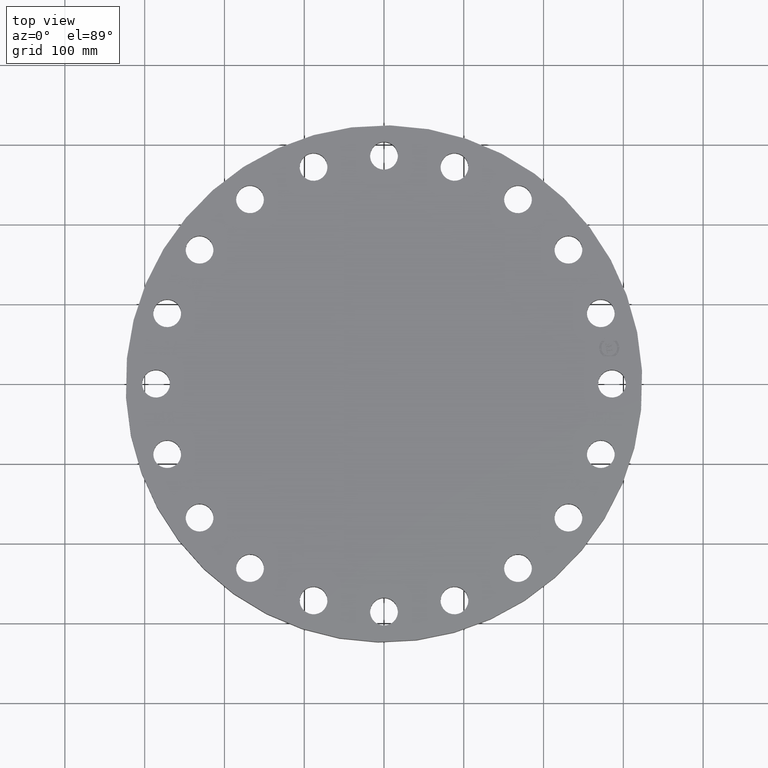
[diagram: clean part render]
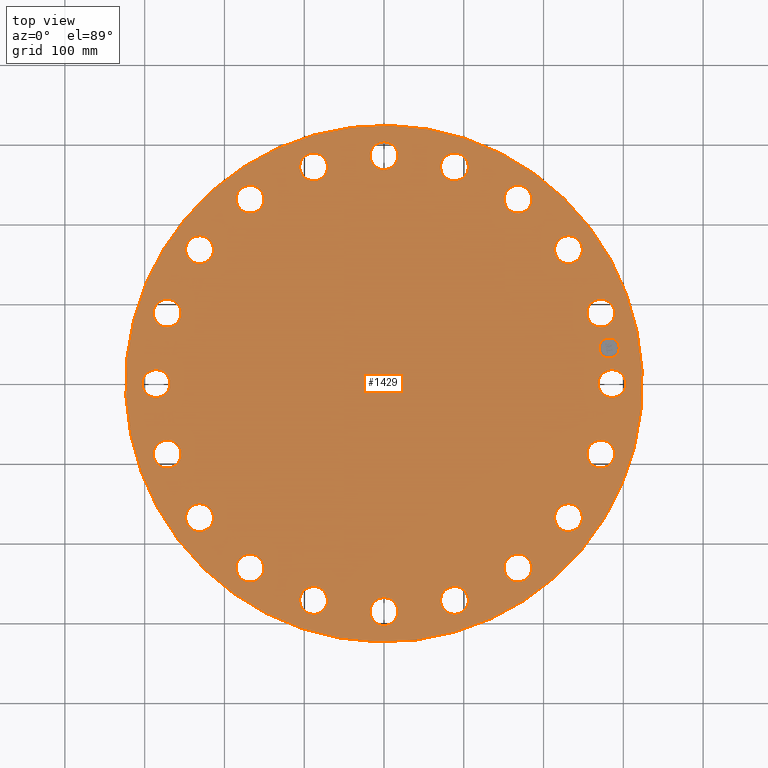
[diagram: same view with one face highlighted and labeled with its STEP entity id]
A machine part, top view. The second image highlights one B-rep face of the part: STEP entity #1429.
In plain terms, the highlighted planar face has unit normal (0, 0, 1).
Its self-contained STEP definition (entity closure, byte-faithful):
#65=AXIS2_PLACEMENT_3D('Circle Axis2P3D',#63,#64,$) ;
#82=AXIS2_PLACEMENT_3D('Circle Axis2P3D',#80,#81,$) ;
#108=AXIS2_PLACEMENT_3D('Circle Axis2P3D',#106,#107,$) ;
#134=AXIS2_PLACEMENT_3D('Circle Axis2P3D',#132,#133,$) ;
#526=AXIS2_PLACEMENT_3D('Circle Axis2P3D',#524,#525,$) ;
#538=AXIS2_PLACEMENT_3D('Circle Axis2P3D',#536,#537,$) ;
#569=AXIS2_PLACEMENT_3D('Circle Axis2P3D',#567,#568,$) ;
#581=AXIS2_PLACEMENT_3D('Circle Axis2P3D',#579,#580,$) ;
#612=AXIS2_PLACEMENT_3D('Circle Axis2P3D',#610,#611,$) ;
#624=AXIS2_PLACEMENT_3D('Circle Axis2P3D',#622,#623,$) ;
#655=AXIS2_PLACEMENT_3D('Circle Axis2P3D',#653,#654,$) ;
#667=AXIS2_PLACEMENT_3D('Circle Axis2P3D',#665,#666,$) ;
#698=AXIS2_PLACEMENT_3D('Circle Axis2P3D',#696,#697,$) ;
#710=AXIS2_PLACEMENT_3D('Circle Axis2P3D',#708,#709,$) ;
#741=AXIS2_PLACEMENT_3D('Circle Axis2P3D',#739,#740,$) ;
#753=AXIS2_PLACEMENT_3D('Circle Axis2P3D',#751,#752,$) ;
#784=AXIS2_PLACEMENT_3D('Circle Axis2P3D',#782,#783,$) ;
#796=AXIS2_PLACEMENT_3D('Circle Axis2P3D',#794,#795,$) ;
#827=AXIS2_PLACEMENT_3D('Circle Axis2P3D',#825,#826,$) ;
#839=AXIS2_PLACEMENT_3D('Circle Axis2P3D',#837,#838,$) ;
#870=AXIS2_PLACEMENT_3D('Circle Axis2P3D',#868,#869,$) ;
#882=AXIS2_PLACEMENT_3D('Circle Axis2P3D',#880,#881,$) ;
#913=AXIS2_PLACEMENT_3D('Circle Axis2P3D',#911,#912,$) ;
#925=AXIS2_PLACEMENT_3D('Circle Axis2P3D',#923,#924,$) ;
#956=AXIS2_PLACEMENT_3D('Circle Axis2P3D',#954,#955,$) ;
#968=AXIS2_PLACEMENT_3D('Circle Axis2P3D',#966,#967,$) ;
#999=AXIS2_PLACEMENT_3D('Circle Axis2P3D',#997,#998,$) ;
#1011=AXIS2_PLACEMENT_3D('Circle Axis2P3D',#1009,#1010,$) ;
#1042=AXIS2_PLACEMENT_3D('Circle Axis2P3D',#1040,#1041,$) ;
#1054=AXIS2_PLACEMENT_3D('Circle Axis2P3D',#1052,#1053,$) ;
#1085=AXIS2_PLACEMENT_3D('Circle Axis2P3D',#1083,#1084,$) ;
#1097=AXIS2_PLACEMENT_3D('Circle Axis2P3D',#1095,#1096,$) ;
#1128=AXIS2_PLACEMENT_3D('Circle Axis2P3D',#1126,#1127,$) ;
#1140=AXIS2_PLACEMENT_3D('Circle Axis2P3D',#1138,#1139,$) ;
#1171=AXIS2_PLACEMENT_3D('Circle Axis2P3D',#1169,#1170,$) ;
#1183=AXIS2_PLACEMENT_3D('Circle Axis2P3D',#1181,#1182,$) ;
#1214=AXIS2_PLACEMENT_3D('Circle Axis2P3D',#1212,#1213,$) ;
#1226=AXIS2_PLACEMENT_3D('Circle Axis2P3D',#1224,#1225,$) ;
#1257=AXIS2_PLACEMENT_3D('Circle Axis2P3D',#1255,#1256,$) ;
#1269=AXIS2_PLACEMENT_3D('Circle Axis2P3D',#1267,#1268,$) ;
#1300=AXIS2_PLACEMENT_3D('Circle Axis2P3D',#1298,#1299,$) ;
#1312=AXIS2_PLACEMENT_3D('Circle Axis2P3D',#1310,#1311,$) ;
#1325=AXIS2_PLACEMENT_3D('Plane Axis2P3D',#1322,#1323,#1324) ;
#1413=AXIS2_PLACEMENT_3D('Circle Axis2P3D',#1411,#1412,$) ;
#1422=AXIS2_PLACEMENT_3D('Circle Axis2P3D',#1420,#1421,$) ;
#46=CARTESIAN_POINT('Vertex',(10.6466619887,0.329605057792,2.14000000001)) ;
#60=CARTESIAN_POINT('Vertex',(11.8533380113,-0.329605057792,2.14000000001)) ;
#63=CARTESIAN_POINT('Axis2P3D Location',(11.25,0.,2.14000000001)) ;
#80=CARTESIAN_POINT('Axis2P3D Location',(11.25,0.,2.14000000001)) ;
#103=CARTESIAN_POINT('Vertex',(11.1891776641,6.11267561723,2.14000000001)) ;
#106=CARTESIAN_POINT('Axis2P3D Location',(0.,0.,2.14000000001)) ;
#110=CARTESIAN_POINT('Vertex',(-11.1891776641,-6.11267561723,2.14000000001)) ;
#132=CARTESIAN_POINT('Axis2P3D Location',(0.,0.,2.14000000001)) ;
#514=CARTESIAN_POINT('Vertex',(10.0237236969,3.6034725259,2.14000000001)) ;
#521=CARTESIAN_POINT('Vertex',(11.3750479198,3.34940984756,2.14000000001)) ;
#524=CARTESIAN_POINT('Axis2P3D Location',(10.6993858084,3.47644118673,2.14000000001)) ;
#536=CARTESIAN_POINT('Axis2P3D Location',(10.6993858084,3.47644118673,2.14000000001)) ;
#557=CARTESIAN_POINT('Vertex',(8.41959349021,6.52460699631,2.14000000001)) ;
#564=CARTESIAN_POINT('Vertex',(9.7832888833,6.70056118032,2.14000000001)) ;
#567=CARTESIAN_POINT('Axis2P3D Location',(9.10144118675,6.61258408832,2.14000000001)) ;
#579=CARTESIAN_POINT('Axis2P3D Location',(9.10144118675,6.61258408832,2.14000000001)) ;
#600=CARTESIAN_POINT('Vertex',(5.99129480994,8.80706747431,2.14000000001)) ;
#607=CARTESIAN_POINT('Vertex',(7.23387336669,9.3958148992,2.14000000001)) ;
#610=CARTESIAN_POINT('Axis2P3D Location',(6.61258408832,9.10144118675,2.14000000001)) ;
#622=CARTESIAN_POINT('Axis2P3D Location',(6.61258408832,9.10144118675,2.14000000001)) ;
#643=CARTESIAN_POINT('Vertex',(2.97652644987,10.2274308255,2.14000000001)) ;
#650=CARTESIAN_POINT('Vertex',(3.97635592359,11.1713407913,2.14000000001)) ;
#653=CARTESIAN_POINT('Axis2P3D Location',(3.47644118673,10.6993858084,2.14000000001)) ;
#665=CARTESIAN_POINT('Axis2P3D Location',(3.47644118673,10.6993858084,2.14000000001)) ;
#686=CARTESIAN_POINT('Vertex',(-0.329605057792,10.6466619887,2.14000000001)) ;
#693=CARTESIAN_POINT('Vertex',(0.329605057792,11.8533380113,2.14000000001)) ;
#696=CARTESIAN_POINT('Axis2P3D Location',(3.18686562994E-015,11.25,2.14000000001)) ;
#708=CARTESIAN_POINT('Axis2P3D Location',(3.18686562994E-015,11.25,2.14000000001)) ;
#729=CARTESIAN_POINT('Vertex',(-3.6034725259,10.0237236969,2.14000000001)) ;
#736=CARTESIAN_POINT('Vertex',(-3.34940984756,11.3750479198,2.14000000001)) ;
#739=CARTESIAN_POINT('Axis2P3D Location',(-3.47644118673,10.6993858084,2.14000000001)) ;
#751=CARTESIAN_POINT('Axis2P3D Location',(-3.47644118673,10.6993858084,2.14000000001)) ;
#772=CARTESIAN_POINT('Vertex',(-6.52460699631,8.41959349021,2.14000000001)) ;
#779=CARTESIAN_POINT('Vertex',(-6.70056118032,9.7832888833,2.14000000001)) ;
#782=CARTESIAN_POINT('Axis2P3D Location',(-6.61258408832,9.10144118675,2.14000000001)) ;
#794=CARTESIAN_POINT('Axis2P3D Location',(-6.61258408832,9.10144118675,2.14000000001)) ;
#815=CARTESIAN_POINT('Vertex',(-8.80706747431,5.99129480994,2.14000000001)) ;
#822=CARTESIAN_POINT('Vertex',(-9.3958148992,7.23387336669,2.14000000001)) ;
#825=CARTESIAN_POINT('Axis2P3D Location',(-9.10144118675,6.61258408832,2.14000000001)) ;
#837=CARTESIAN_POINT('Axis2P3D Location',(-9.10144118675,6.61258408832,2.14000000001)) ;
#858=CARTESIAN_POINT('Vertex',(-10.2274308255,2.97652644987,2.14000000001)) ;
#865=CARTESIAN_POINT('Vertex',(-11.1713407913,3.97635592359,2.14000000001)) ;
#868=CARTESIAN_POINT('Axis2P3D Location',(-10.6993858084,3.47644118673,2.14000000001)) ;
#880=CARTESIAN_POINT('Axis2P3D Location',(-10.6993858084,3.47644118673,2.14000000001)) ;
#901=CARTESIAN_POINT('Vertex',(-10.6466619887,-0.329605057792,2.14000000001)) ;
#908=CARTESIAN_POINT('Vertex',(-11.8533380113,0.329605057792,2.14000000001)) ;
#911=CARTESIAN_POINT('Axis2P3D Location',(-11.25,6.37373125988E-015,2.14000000001)) ;
#923=CARTESIAN_POINT('Axis2P3D Location',(-11.25,6.37373125988E-015,2.14000000001)) ;
#944=CARTESIAN_POINT('Vertex',(-10.0237236969,-3.6034725259,2.14000000001)) ;
#951=CARTESIAN_POINT('Vertex',(-11.3750479198,-3.34940984756,2.14000000001)) ;
#954=CARTESIAN_POINT('Axis2P3D Location',(-10.6993858084,-3.47644118673,2.14000000001)) ;
#966=CARTESIAN_POINT('Axis2P3D Location',(-10.6993858084,-3.47644118673,2.14000000001)) ;
#987=CARTESIAN_POINT('Vertex',(-8.41959349021,-6.52460699631,2.14000000001)) ;
#994=CARTESIAN_POINT('Vertex',(-9.7832888833,-6.70056118032,2.14000000001)) ;
#997=CARTESIAN_POINT('Axis2P3D Location',(-9.10144118675,-6.61258408832,2.14000000001)) ;
#1009=CARTESIAN_POINT('Axis2P3D Location',(-9.10144118675,-6.61258408832,2.14000000001)) ;
#1030=CARTESIAN_POINT('Vertex',(-5.99129480994,-8.80706747431,2.14000000001)) ;
#1037=CARTESIAN_POINT('Vertex',(-7.23387336669,-9.3958148992,2.14000000001)) ;
#1040=CARTESIAN_POINT('Axis2P3D Location',(-6.61258408832,-9.10144118675,2.14000000001)) ;
#1052=CARTESIAN_POINT('Axis2P3D Location',(-6.61258408832,-9.10144118675,2.14000000001)) ;
#1073=CARTESIAN_POINT('Vertex',(-2.97652644987,-10.2274308255,2.14000000001)) ;
#1080=CARTESIAN_POINT('Vertex',(-3.97635592359,-11.1713407913,2.14000000001)) ;
#1083=CARTESIAN_POINT('Axis2P3D Location',(-3.47644118673,-10.6993858084,2.14000000001)) ;
#1095=CARTESIAN_POINT('Axis2P3D Location',(-3.47644118673,-10.6993858084,2.14000000001)) ;
#1116=CARTESIAN_POINT('Vertex',(0.329605057792,-10.6466619887,2.14000000001)) ;
#1123=CARTESIAN_POINT('Vertex',(-0.329605057792,-11.8533380113,2.14000000001)) ;
#1126=CARTESIAN_POINT('Axis2P3D Location',(-9.82066881883E-015,-11.25,2.14000000001)) ;
#1138=CARTESIAN_POINT('Axis2P3D Location',(-9.82066881883E-015,-11.25,2.14000000001)) ;
#1159=CARTESIAN_POINT('Vertex',(3.6034725259,-10.0237236969,2.14000000001)) ;
#1166=CARTESIAN_POINT('Vertex',(3.34940984756,-11.3750479198,2.14000000001)) ;
#1169=CARTESIAN_POINT('Axis2P3D Location',(3.47644118673,-10.6993858084,2.14000000001)) ;
#1181=CARTESIAN_POINT('Axis2P3D Location',(3.47644118673,-10.6993858084,2.14000000001)) ;
#1202=CARTESIAN_POINT('Vertex',(6.52460699631,-8.41959349021,2.14000000001)) ;
#1209=CARTESIAN_POINT('Vertex',(6.70056118032,-9.7832888833,2.14000000001)) ;
#1212=CARTESIAN_POINT('Axis2P3D Location',(6.61258408832,-9.10144118675,2.14000000001)) ;
#1224=CARTESIAN_POINT('Axis2P3D Location',(6.61258408832,-9.10144118675,2.14000000001)) ;
#1245=CARTESIAN_POINT('Vertex',(8.80706747431,-5.99129480994,2.14000000001)) ;
#1252=CARTESIAN_POINT('Vertex',(9.3958148992,-7.23387336669,2.14000000001)) ;
#1255=CARTESIAN_POINT('Axis2P3D Location',(9.10144118675,-6.61258408832,2.14000000001)) ;
#1267=CARTESIAN_POINT('Axis2P3D Location',(9.10144118675,-6.61258408832,2.14000000001)) ;
#1288=CARTESIAN_POINT('Vertex',(10.2274308255,-2.97652644987,2.14000000001)) ;
#1295=CARTESIAN_POINT('Vertex',(11.1713407913,-3.97635592359,2.14000000001)) ;
#1298=CARTESIAN_POINT('Axis2P3D Location',(10.6993858084,-3.47644118673,2.14000000001)) ;
#1310=CARTESIAN_POINT('Axis2P3D Location',(10.6993858084,-3.47644118673,2.14000000001)) ;
#1322=CARTESIAN_POINT('Axis2P3D Location',(12.7500000001,0.,2.14000000001)) ;
#1411=CARTESIAN_POINT('Axis2P3D Location',(11.1114938317,1.75988773171,2.14000000001)) ;
#1415=CARTESIAN_POINT('Vertex',(11.0332766,2.25373189707,2.14000000001)) ;
#1417=CARTESIAN_POINT('Vertex',(11.1897110635,1.26604356635,2.14000000001)) ;
#1420=CARTESIAN_POINT('Axis2P3D Location',(11.1114938317,1.75988773171,2.14000000001)) ;
#64=DIRECTION('Axis2P3D Direction',(0.,-0.,-0.0393700787402)) ;
#81=DIRECTION('Axis2P3D Direction',(0.,-0.,-0.0393700787402)) ;
#107=DIRECTION('Axis2P3D Direction',(0.,0.,0.0393700787402)) ;
#133=DIRECTION('Axis2P3D Direction',(0.,0.,0.0393700787402)) ;
#525=DIRECTION('Axis2P3D Direction',(0.,0.,-0.0393700787402)) ;
#537=DIRECTION('Axis2P3D Direction',(0.,0.,-0.0393700787402)) ;
#568=DIRECTION('Axis2P3D Direction',(0.,0.,-0.0393700787402)) ;
#580=DIRECTION('Axis2P3D Direction',(0.,0.,-0.0393700787402)) ;
#611=DIRECTION('Axis2P3D Direction',(0.,0.,-0.0393700787402)) ;
#623=DIRECTION('Axis2P3D Direction',(0.,0.,-0.0393700787402)) ;
#654=DIRECTION('Axis2P3D Direction',(0.,0.,-0.0393700787402)) ;
#666=DIRECTION('Axis2P3D Direction',(0.,0.,-0.0393700787402)) ;
#697=DIRECTION('Axis2P3D Direction',(0.,0.,-0.0393700787402)) ;
#709=DIRECTION('Axis2P3D Direction',(0.,0.,-0.0393700787402)) ;
#740=DIRECTION('Axis2P3D Direction',(0.,0.,-0.0393700787402)) ;
#752=DIRECTION('Axis2P3D Direction',(0.,0.,-0.0393700787402)) ;
#783=DIRECTION('Axis2P3D Direction',(0.,0.,-0.0393700787402)) ;
#795=DIRECTION('Axis2P3D Direction',(0.,0.,-0.0393700787402)) ;
#826=DIRECTION('Axis2P3D Direction',(0.,0.,-0.0393700787402)) ;
#838=DIRECTION('Axis2P3D Direction',(0.,0.,-0.0393700787402)) ;
#869=DIRECTION('Axis2P3D Direction',(0.,0.,-0.0393700787402)) ;
#881=DIRECTION('Axis2P3D Direction',(0.,0.,-0.0393700787402)) ;
#912=DIRECTION('Axis2P3D Direction',(0.,0.,-0.0393700787402)) ;
#924=DIRECTION('Axis2P3D Direction',(0.,0.,-0.0393700787402)) ;
#955=DIRECTION('Axis2P3D Direction',(-0.,0.,-0.0393700787402)) ;
#967=DIRECTION('Axis2P3D Direction',(-0.,0.,-0.0393700787402)) ;
#998=DIRECTION('Axis2P3D Direction',(-0.,0.,-0.0393700787402)) ;
#1010=DIRECTION('Axis2P3D Direction',(-0.,0.,-0.0393700787402)) ;
#1041=DIRECTION('Axis2P3D Direction',(-0.,0.,-0.0393700787402)) ;
#1053=DIRECTION('Axis2P3D Direction',(-0.,0.,-0.0393700787402)) ;
#1084=DIRECTION('Axis2P3D Direction',(-0.,0.,-0.0393700787402)) ;
#1096=DIRECTION('Axis2P3D Direction',(-0.,0.,-0.0393700787402)) ;
#1127=DIRECTION('Axis2P3D Direction',(-0.,0.,-0.0393700787402)) ;
#1139=DIRECTION('Axis2P3D Direction',(-0.,0.,-0.0393700787402)) ;
#1170=DIRECTION('Axis2P3D Direction',(0.,-0.,-0.0393700787402)) ;
#1182=DIRECTION('Axis2P3D Direction',(0.,-0.,-0.0393700787402)) ;
#1213=DIRECTION('Axis2P3D Direction',(0.,-0.,-0.0393700787402)) ;
#1225=DIRECTION('Axis2P3D Direction',(0.,-0.,-0.0393700787402)) ;
#1256=DIRECTION('Axis2P3D Direction',(0.,-0.,-0.0393700787402)) ;
#1268=DIRECTION('Axis2P3D Direction',(0.,-0.,-0.0393700787402)) ;
#1299=DIRECTION('Axis2P3D Direction',(0.,-0.,-0.0393700787402)) ;
#1311=DIRECTION('Axis2P3D Direction',(0.,-0.,-0.0393700787402)) ;
#1323=DIRECTION('Axis2P3D Direction',(0.,0.,0.0393700787402)) ;
#1324=DIRECTION('Axis2P3D XDirection',(0.0393700787402,0.,0.)) ;
#1412=DIRECTION('Axis2P3D Direction',(0.,0.,0.0393700787402)) ;
#1421=DIRECTION('Axis2P3D Direction',(0.,0.,0.0393700787402)) ;
#1328=ORIENTED_EDGE('',*,*,#112,.T.) ;
#1329=ORIENTED_EDGE('',*,*,#136,.T.) ;
#1332=ORIENTED_EDGE('',*,*,#84,.F.) ;
#1333=ORIENTED_EDGE('',*,*,#67,.F.) ;
#1336=ORIENTED_EDGE('',*,*,#528,.F.) ;
#1337=ORIENTED_EDGE('',*,*,#540,.F.) ;
#1340=ORIENTED_EDGE('',*,*,#571,.F.) ;
#1341=ORIENTED_EDGE('',*,*,#583,.F.) ;
#1344=ORIENTED_EDGE('',*,*,#614,.F.) ;
#1345=ORIENTED_EDGE('',*,*,#626,.F.) ;
#1348=ORIENTED_EDGE('',*,*,#657,.F.) ;
#1349=ORIENTED_EDGE('',*,*,#669,.F.) ;
#1352=ORIENTED_EDGE('',*,*,#700,.F.) ;
#1353=ORIENTED_EDGE('',*,*,#712,.F.) ;
#1356=ORIENTED_EDGE('',*,*,#743,.F.) ;
#1357=ORIENTED_EDGE('',*,*,#755,.F.) ;
#1360=ORIENTED_EDGE('',*,*,#786,.F.) ;
#1361=ORIENTED_EDGE('',*,*,#798,.F.) ;
#1364=ORIENTED_EDGE('',*,*,#829,.F.) ;
#1365=ORIENTED_EDGE('',*,*,#841,.F.) ;
#1368=ORIENTED_EDGE('',*,*,#872,.F.) ;
#1369=ORIENTED_EDGE('',*,*,#884,.F.) ;
#1372=ORIENTED_EDGE('',*,*,#915,.F.) ;
#1373=ORIENTED_EDGE('',*,*,#927,.F.) ;
#1376=ORIENTED_EDGE('',*,*,#958,.F.) ;
#1377=ORIENTED_EDGE('',*,*,#970,.F.) ;
#1380=ORIENTED_EDGE('',*,*,#1001,.F.) ;
#1381=ORIENTED_EDGE('',*,*,#1013,.F.) ;
#1384=ORIENTED_EDGE('',*,*,#1044,.F.) ;
#1385=ORIENTED_EDGE('',*,*,#1056,.F.) ;
#1388=ORIENTED_EDGE('',*,*,#1087,.F.) ;
#1389=ORIENTED_EDGE('',*,*,#1099,.F.) ;
#1392=ORIENTED_EDGE('',*,*,#1130,.F.) ;
#1393=ORIENTED_EDGE('',*,*,#1142,.F.) ;
#1396=ORIENTED_EDGE('',*,*,#1173,.F.) ;
#1397=ORIENTED_EDGE('',*,*,#1185,.F.) ;
#1400=ORIENTED_EDGE('',*,*,#1216,.F.) ;
#1401=ORIENTED_EDGE('',*,*,#1228,.F.) ;
#1404=ORIENTED_EDGE('',*,*,#1259,.F.) ;
#1405=ORIENTED_EDGE('',*,*,#1271,.F.) ;
#1408=ORIENTED_EDGE('',*,*,#1302,.F.) ;
#1409=ORIENTED_EDGE('',*,*,#1314,.F.) ;
#1426=ORIENTED_EDGE('',*,*,#1419,.F.) ;
#1427=ORIENTED_EDGE('',*,*,#1424,.F.) ;
#1334=FACE_BOUND('',#1331,.T.) ;
#1338=FACE_BOUND('',#1335,.T.) ;
#1342=FACE_BOUND('',#1339,.T.) ;
#1346=FACE_BOUND('',#1343,.T.) ;
#1350=FACE_BOUND('',#1347,.T.) ;
#1354=FACE_BOUND('',#1351,.T.) ;
#1358=FACE_BOUND('',#1355,.T.) ;
#1362=FACE_BOUND('',#1359,.T.) ;
#1366=FACE_BOUND('',#1363,.T.) ;
#1370=FACE_BOUND('',#1367,.T.) ;
#1374=FACE_BOUND('',#1371,.T.) ;
#1378=FACE_BOUND('',#1375,.T.) ;
#1382=FACE_BOUND('',#1379,.T.) ;
#1386=FACE_BOUND('',#1383,.T.) ;
#1390=FACE_BOUND('',#1387,.T.) ;
#1394=FACE_BOUND('',#1391,.T.) ;
#1398=FACE_BOUND('',#1395,.T.) ;
#1402=FACE_BOUND('',#1399,.T.) ;
#1406=FACE_BOUND('',#1403,.T.) ;
#1410=FACE_BOUND('',#1407,.T.) ;
#1428=FACE_BOUND('',#1425,.T.) ;
#1429=ADVANCED_FACE('PartBody',(#1330,#1334,#1338,#1342,#1346,#1350,#1354,#1358,#1362,#1366,#1370,#1374,#1378,#1382,#1386,#1390,#1394,#1398,#1402,#1406,#1410,#1428),#1326,.T.) ;
#66=CIRCLE('generated circle',#65,0.687500000003) ;
#83=CIRCLE('generated circle',#82,0.687500000003) ;
#109=CIRCLE('generated circle',#108,12.7500000001) ;
#135=CIRCLE('generated circle',#134,12.7500000001) ;
#527=CIRCLE('generated circle',#526,0.687500000003) ;
#539=CIRCLE('generated circle',#538,0.687500000003) ;
#570=CIRCLE('generated circle',#569,0.687500000003) ;
#582=CIRCLE('generated circle',#581,0.687500000003) ;
#613=CIRCLE('generated circle',#612,0.687500000003) ;
#625=CIRCLE('generated circle',#624,0.687500000003) ;
#656=CIRCLE('generated circle',#655,0.687500000003) ;
#668=CIRCLE('generated circle',#667,0.687500000003) ;
#699=CIRCLE('generated circle',#698,0.687500000003) ;
#711=CIRCLE('generated circle',#710,0.687500000003) ;
#742=CIRCLE('generated circle',#741,0.687500000003) ;
#754=CIRCLE('generated circle',#753,0.687500000003) ;
#785=CIRCLE('generated circle',#784,0.687500000003) ;
#797=CIRCLE('generated circle',#796,0.687500000003) ;
#828=CIRCLE('generated circle',#827,0.687500000003) ;
#840=CIRCLE('generated circle',#839,0.687500000003) ;
#871=CIRCLE('generated circle',#870,0.687500000003) ;
#883=CIRCLE('generated circle',#882,0.687500000003) ;
#914=CIRCLE('generated circle',#913,0.687500000003) ;
#926=CIRCLE('generated circle',#925,0.687500000003) ;
#957=CIRCLE('generated circle',#956,0.687500000003) ;
#969=CIRCLE('generated circle',#968,0.687500000003) ;
#1000=CIRCLE('generated circle',#999,0.687500000003) ;
#1012=CIRCLE('generated circle',#1011,0.687500000003) ;
#1043=CIRCLE('generated circle',#1042,0.687500000003) ;
#1055=CIRCLE('generated circle',#1054,0.687500000003) ;
#1086=CIRCLE('generated circle',#1085,0.687500000003) ;
#1098=CIRCLE('generated circle',#1097,0.687500000003) ;
#1129=CIRCLE('generated circle',#1128,0.687500000003) ;
#1141=CIRCLE('generated circle',#1140,0.687500000003) ;
#1172=CIRCLE('generated circle',#1171,0.687500000003) ;
#1184=CIRCLE('generated circle',#1183,0.687500000003) ;
#1215=CIRCLE('generated circle',#1214,0.687500000003) ;
#1227=CIRCLE('generated circle',#1226,0.687500000003) ;
#1258=CIRCLE('generated circle',#1257,0.687500000003) ;
#1270=CIRCLE('generated circle',#1269,0.687500000003) ;
#1301=CIRCLE('generated circle',#1300,0.687500000003) ;
#1313=CIRCLE('generated circle',#1312,0.687500000003) ;
#1414=CIRCLE('generated circle',#1413,0.499999995002) ;
#1423=CIRCLE('generated circle',#1422,0.499999995002) ;
#67=EDGE_CURVE('',#61,#47,#66,.F.) ;
#84=EDGE_CURVE('',#47,#61,#83,.F.) ;
#112=EDGE_CURVE('',#111,#104,#109,.T.) ;
#136=EDGE_CURVE('',#104,#111,#135,.T.) ;
#528=EDGE_CURVE('',#522,#515,#527,.F.) ;
#540=EDGE_CURVE('',#515,#522,#539,.F.) ;
#571=EDGE_CURVE('',#565,#558,#570,.F.) ;
#583=EDGE_CURVE('',#558,#565,#582,.F.) ;
#614=EDGE_CURVE('',#608,#601,#613,.F.) ;
#626=EDGE_CURVE('',#601,#608,#625,.F.) ;
#657=EDGE_CURVE('',#651,#644,#656,.F.) ;
#669=EDGE_CURVE('',#644,#651,#668,.F.) ;
#700=EDGE_CURVE('',#694,#687,#699,.F.) ;
#712=EDGE_CURVE('',#687,#694,#711,.F.) ;
#743=EDGE_CURVE('',#737,#730,#742,.F.) ;
#755=EDGE_CURVE('',#730,#737,#754,.F.) ;
#786=EDGE_CURVE('',#780,#773,#785,.F.) ;
#798=EDGE_CURVE('',#773,#780,#797,.F.) ;
#829=EDGE_CURVE('',#823,#816,#828,.F.) ;
#841=EDGE_CURVE('',#816,#823,#840,.F.) ;
#872=EDGE_CURVE('',#866,#859,#871,.F.) ;
#884=EDGE_CURVE('',#859,#866,#883,.F.) ;
#915=EDGE_CURVE('',#909,#902,#914,.F.) ;
#927=EDGE_CURVE('',#902,#909,#926,.F.) ;
#958=EDGE_CURVE('',#952,#945,#957,.F.) ;
#970=EDGE_CURVE('',#945,#952,#969,.F.) ;
#1001=EDGE_CURVE('',#995,#988,#1000,.F.) ;
#1013=EDGE_CURVE('',#988,#995,#1012,.F.) ;
#1044=EDGE_CURVE('',#1038,#1031,#1043,.F.) ;
#1056=EDGE_CURVE('',#1031,#1038,#1055,.F.) ;
#1087=EDGE_CURVE('',#1081,#1074,#1086,.F.) ;
#1099=EDGE_CURVE('',#1074,#1081,#1098,.F.) ;
#1130=EDGE_CURVE('',#1124,#1117,#1129,.F.) ;
#1142=EDGE_CURVE('',#1117,#1124,#1141,.F.) ;
#1173=EDGE_CURVE('',#1167,#1160,#1172,.F.) ;
#1185=EDGE_CURVE('',#1160,#1167,#1184,.F.) ;
#1216=EDGE_CURVE('',#1210,#1203,#1215,.F.) ;
#1228=EDGE_CURVE('',#1203,#1210,#1227,.F.) ;
#1259=EDGE_CURVE('',#1253,#1246,#1258,.F.) ;
#1271=EDGE_CURVE('',#1246,#1253,#1270,.F.) ;
#1302=EDGE_CURVE('',#1296,#1289,#1301,.F.) ;
#1314=EDGE_CURVE('',#1289,#1296,#1313,.F.) ;
#1419=EDGE_CURVE('',#1416,#1418,#1414,.T.) ;
#1424=EDGE_CURVE('',#1418,#1416,#1423,.T.) ;
#1327=EDGE_LOOP('',(#1328,#1329)) ;
#1331=EDGE_LOOP('',(#1332,#1333)) ;
#1335=EDGE_LOOP('',(#1336,#1337)) ;
#1339=EDGE_LOOP('',(#1340,#1341)) ;
#1343=EDGE_LOOP('',(#1344,#1345)) ;
#1347=EDGE_LOOP('',(#1348,#1349)) ;
#1351=EDGE_LOOP('',(#1352,#1353)) ;
#1355=EDGE_LOOP('',(#1356,#1357)) ;
#1359=EDGE_LOOP('',(#1360,#1361)) ;
#1363=EDGE_LOOP('',(#1364,#1365)) ;
#1367=EDGE_LOOP('',(#1368,#1369)) ;
#1371=EDGE_LOOP('',(#1372,#1373)) ;
#1375=EDGE_LOOP('',(#1376,#1377)) ;
#1379=EDGE_LOOP('',(#1380,#1381)) ;
#1383=EDGE_LOOP('',(#1384,#1385)) ;
#1387=EDGE_LOOP('',(#1388,#1389)) ;
#1391=EDGE_LOOP('',(#1392,#1393)) ;
#1395=EDGE_LOOP('',(#1396,#1397)) ;
#1399=EDGE_LOOP('',(#1400,#1401)) ;
#1403=EDGE_LOOP('',(#1404,#1405)) ;
#1407=EDGE_LOOP('',(#1408,#1409)) ;
#1425=EDGE_LOOP('',(#1426,#1427)) ;
#1330=FACE_OUTER_BOUND('',#1327,.T.) ;
#1326=PLANE('',#1325) ;
#47=VERTEX_POINT('',#46) ;
#61=VERTEX_POINT('',#60) ;
#104=VERTEX_POINT('',#103) ;
#111=VERTEX_POINT('',#110) ;
#515=VERTEX_POINT('',#514) ;
#522=VERTEX_POINT('',#521) ;
#558=VERTEX_POINT('',#557) ;
#565=VERTEX_POINT('',#564) ;
#601=VERTEX_POINT('',#600) ;
#608=VERTEX_POINT('',#607) ;
#644=VERTEX_POINT('',#643) ;
#651=VERTEX_POINT('',#650) ;
#687=VERTEX_POINT('',#686) ;
#694=VERTEX_POINT('',#693) ;
#730=VERTEX_POINT('',#729) ;
#737=VERTEX_POINT('',#736) ;
#773=VERTEX_POINT('',#772) ;
#780=VERTEX_POINT('',#779) ;
#816=VERTEX_POINT('',#815) ;
#823=VERTEX_POINT('',#822) ;
#859=VERTEX_POINT('',#858) ;
#866=VERTEX_POINT('',#865) ;
#902=VERTEX_POINT('',#901) ;
#909=VERTEX_POINT('',#908) ;
#945=VERTEX_POINT('',#944) ;
#952=VERTEX_POINT('',#951) ;
#988=VERTEX_POINT('',#987) ;
#995=VERTEX_POINT('',#994) ;
#1031=VERTEX_POINT('',#1030) ;
#1038=VERTEX_POINT('',#1037) ;
#1074=VERTEX_POINT('',#1073) ;
#1081=VERTEX_POINT('',#1080) ;
#1117=VERTEX_POINT('',#1116) ;
#1124=VERTEX_POINT('',#1123) ;
#1160=VERTEX_POINT('',#1159) ;
#1167=VERTEX_POINT('',#1166) ;
#1203=VERTEX_POINT('',#1202) ;
#1210=VERTEX_POINT('',#1209) ;
#1246=VERTEX_POINT('',#1245) ;
#1253=VERTEX_POINT('',#1252) ;
#1289=VERTEX_POINT('',#1288) ;
#1296=VERTEX_POINT('',#1295) ;
#1416=VERTEX_POINT('',#1415) ;
#1418=VERTEX_POINT('',#1417) ;